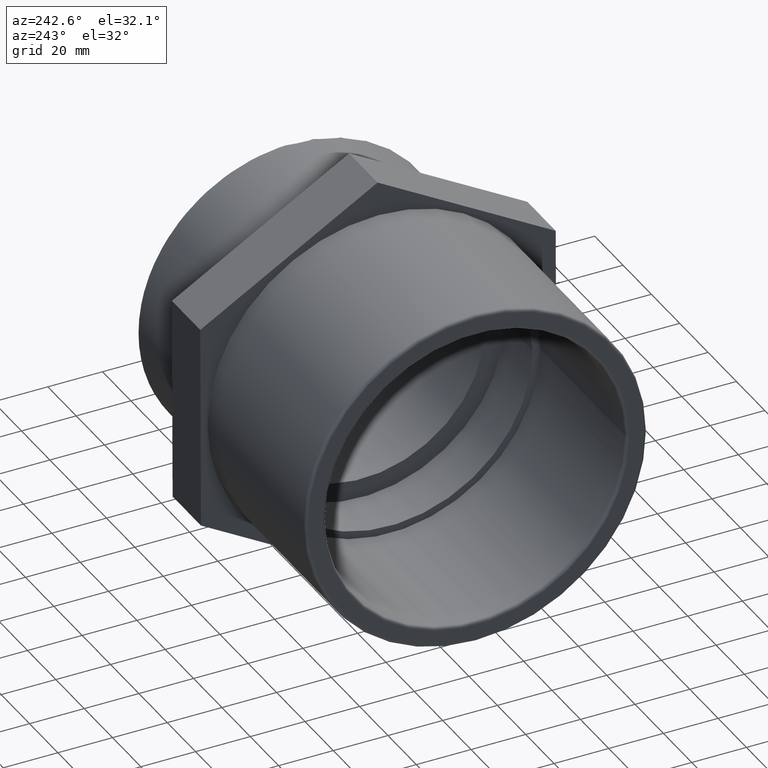
[diagram: clean part render]
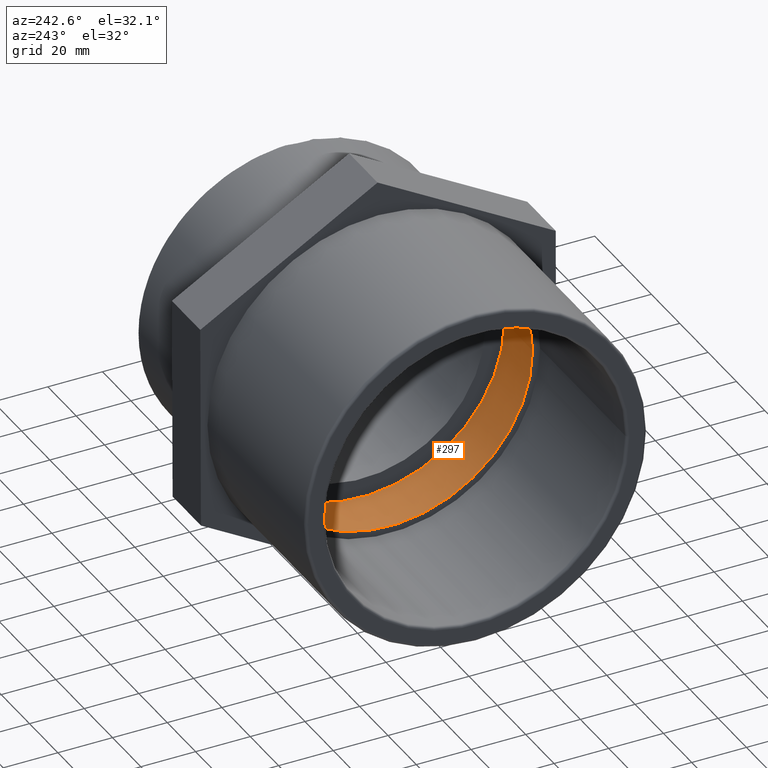
[diagram: same view with one face highlighted and labeled with its STEP entity id]
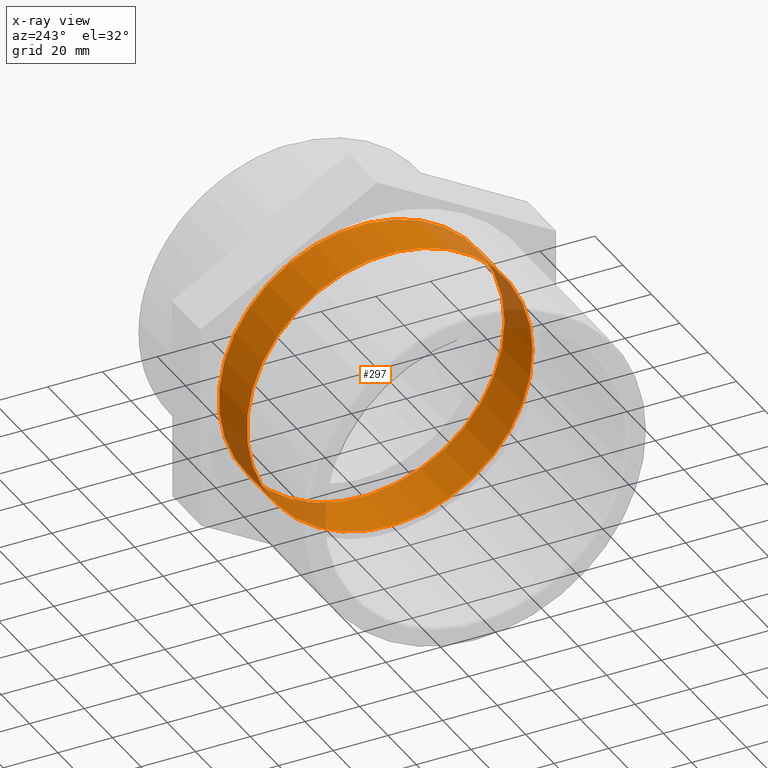
[diagram: x-ray of the same camera — body ghosted, the highlighted face saturated]
A machine part, auxiliary view. The second image highlights one B-rep face of the part: STEP entity #297.
The next image is the same camera in x-ray: the body ghosted, the highlighted face saturated — about 14% of this face is hidden behind the body in this view.
In plain terms, the highlighted cylindrical surface (bore or boss wall) has radius 52.25 mm, axis along (-1, -0, 0).
Its self-contained STEP definition (entity closure, byte-faithful):
#19=CYLINDRICAL_SURFACE('',#333,52.25);
#31=FACE_BOUND('',#103,.T.);
#47=CIRCLE('',#332,52.25);
#48=CIRCLE('',#334,52.25);
#70=FACE_OUTER_BOUND('',#102,.T.);
#102=EDGE_LOOP('',(#250));
#103=EDGE_LOOP('',(#251));
#170=VERTEX_POINT('',#500);
#171=VERTEX_POINT('',#503);
#202=EDGE_CURVE('',#170,#170,#47,.T.);
#203=EDGE_CURVE('',#171,#171,#48,.T.);
#250=ORIENTED_EDGE('',*,*,#203,.F.);
#251=ORIENTED_EDGE('',*,*,#202,.T.);
#297=ADVANCED_FACE('',(#70,#31),#19,.F.);
#332=AXIS2_PLACEMENT_3D('',#501,#416,#417);
#333=AXIS2_PLACEMENT_3D('',#502,#418,#419);
#334=AXIS2_PLACEMENT_3D('',#504,#420,#421);
#416=DIRECTION('center_axis',(-1.,-6.73555739531044E-16,0.));
#417=DIRECTION('ref_axis',(0.,0.,1.));
#418=DIRECTION('center_axis',(-1.,-6.73555739531044E-16,0.));
#419=DIRECTION('ref_axis',(6.45947941600091E-16,-1.,0.));
#420=DIRECTION('center_axis',(-1.,-6.73555739531044E-16,0.));
#421=DIRECTION('ref_axis',(0.,0.,1.));
#500=CARTESIAN_POINT('',(-4.,-52.25,0.));
#501=CARTESIAN_POINT('Origin',(-4.00000000000003,9.24608333356249E-15,0.));
#502=CARTESIAN_POINT('Origin',(5.89999999999998,1.59142851549198E-14,0.));
#503=CARTESIAN_POINT('',(15.8,-52.25,0.));
#504=CARTESIAN_POINT('Origin',(15.8,2.25824869762772E-14,0.));